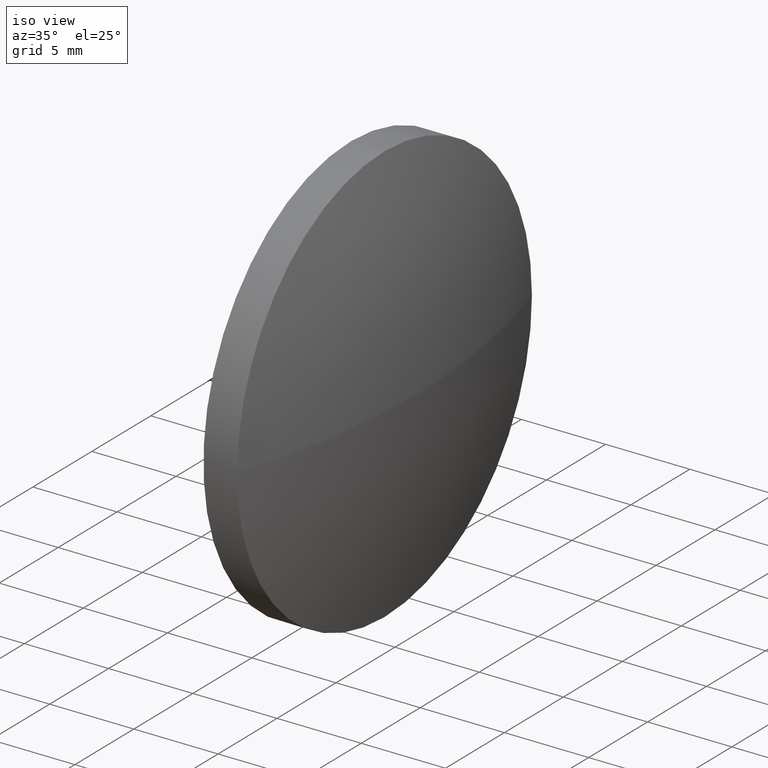
[diagram: clean part render]
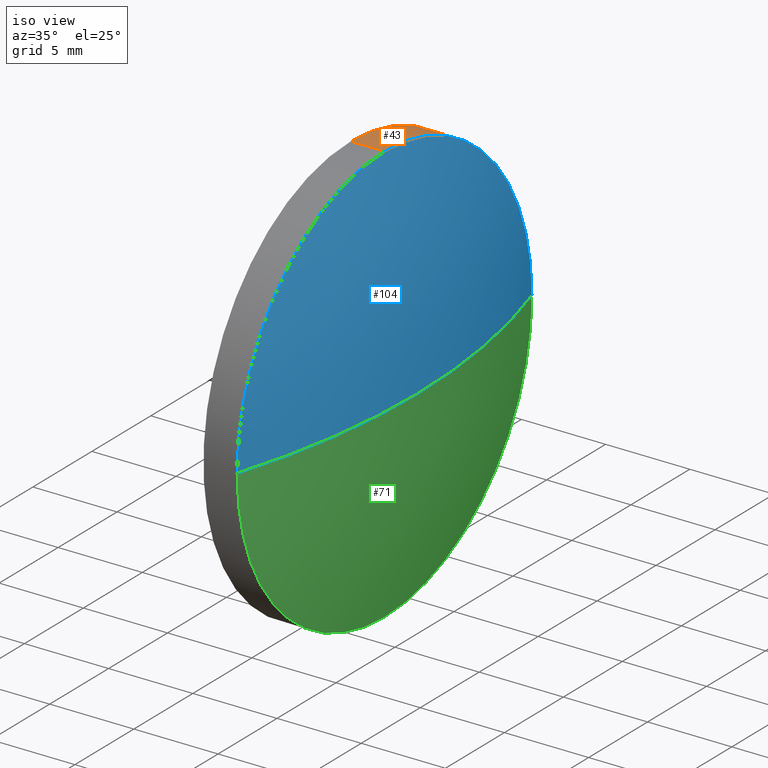
[diagram: same view with three faces highlighted in distinct colors, each labeled with its STEP entity id]
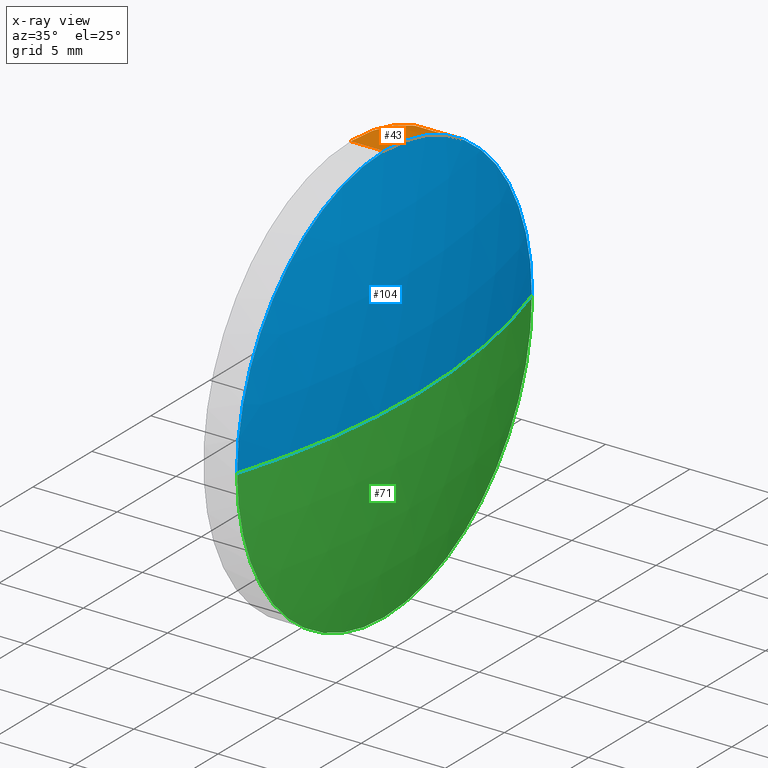
[diagram: x-ray of the same camera — body ghosted, the three highlighted faces saturated]
A machine part, iso view with three faces highlighted in distinct colors.
The next image is the same camera in x-ray (body ghosted, the three faces saturated) — at least one of them is partly hidden behind the body in this view.
Their STEP definitions:

[orange] entity #43 — the highlighted cylindrical surface (partial cylindrical patch) has radius 12.5 mm, axis along (-1, -0, -0).
#2 = LINE ( 'NONE', #151, #123 ) ;
#3 = ORIENTED_EDGE ( 'NONE', *, *, #97, .F. ) ;
#4 = LINE ( 'NONE', #117, #96 ) ;
#12 = VERTEX_POINT ( 'NONE', #49 ) ;
#18 = FACE_OUTER_BOUND ( 'NONE', #48, .T. ) ;
#20 = CARTESIAN_POINT ( 'NONE',  ( 846.2559013236141300, 251.6067305368113700, 12.50000000000001100 ) ) ;
#34 = CARTESIAN_POINT ( 'NONE',  ( 848.2559013236141300, 264.1067305368114300, 1.530808498934193100E-015 ) ) ;
#43 = ADVANCED_FACE ( 'NONE', ( #18 ), #140, .T. ) ;
#45 = EDGE_CURVE ( 'NONE', #12, #90, #87, .T. ) ;
#48 = EDGE_LOOP ( 'NONE', ( #109, #165, #134, #3, #91 ) ) ;
#49 = CARTESIAN_POINT ( 'NONE',  ( 848.2559013236141300, 251.6067305368113700, 12.50000000000001100 ) ) ;
#50 = AXIS2_PLACEMENT_3D ( 'NONE', #84, #65, #180 ) ;
#52 = VERTEX_POINT ( 'NONE', #132 ) ;
#64 = CARTESIAN_POINT ( 'NONE',  ( 848.2559013236141300, 251.6067305368113700, 0.0000000000000000000 ) ) ;
#65 = DIRECTION ( 'NONE',  ( -1.000000000000000000, -0.0000000000000000000, -0.0000000000000000000 ) ) ;
#67 = AXIS2_PLACEMENT_3D ( 'NONE', #98, #82, #154 ) ;
#77 = AXIS2_PLACEMENT_3D ( 'NONE', #64, #143, #166 ) ;
#79 = CIRCLE ( 'NONE', #101, 12.50000000000001100 ) ;
#82 = DIRECTION ( 'NONE',  ( -1.000000000000000000, -0.0000000000000000000, -0.0000000000000000000 ) ) ;
#84 = CARTESIAN_POINT ( 'NONE',  ( 848.2559013236141300, 251.6067305368113700, 0.0000000000000000000 ) ) ;
#87 = CIRCLE ( 'NONE', #50, 12.50000000000001100 ) ;
#88 = VERTEX_POINT ( 'NONE', #183 ) ;
#90 = VERTEX_POINT ( 'NONE', #34 ) ;
#91 = ORIENTED_EDGE ( 'NONE', *, *, #45, .T. ) ;
#92 = DIRECTION ( 'NONE',  ( -1.000000000000000000, -0.0000000000000000000, -0.0000000000000000000 ) ) ;
#96 = VECTOR ( 'NONE', #171, 1000.000000000000000 ) ;
#97 = EDGE_CURVE ( 'NONE', #12, #146, #2, .T. ) ;
#98 = CARTESIAN_POINT ( 'NONE',  ( 843.8902854208531600, 251.6067305368113700, 0.0000000000000000000 ) ) ;
#100 = EDGE_CURVE ( 'NONE', #90, #88, #156, .T. ) ;
#101 = AXIS2_PLACEMENT_3D ( 'NONE', #113, #152, #153 ) ;
#109 = ORIENTED_EDGE ( 'NONE', *, *, #100, .T. ) ;
#113 = CARTESIAN_POINT ( 'NONE',  ( 846.2559013236141300, 251.6067305368113700, 0.0000000000000000000 ) ) ;
#117 = CARTESIAN_POINT ( 'NONE',  ( 843.8902854208531600, 251.6067305368113700, -12.50000000000001100 ) ) ;
#121 = EDGE_CURVE ( 'NONE', #146, #52, #79, .T. ) ;
#123 = VECTOR ( 'NONE', #92, 1000.000000000000000 ) ;
#132 = CARTESIAN_POINT ( 'NONE',  ( 846.2559013236141300, 251.6067305368113700, -12.50000000000001100 ) ) ;
#134 = ORIENTED_EDGE ( 'NONE', *, *, #121, .F. ) ;
#140 = CYLINDRICAL_SURFACE ( 'NONE', #67, 12.50000000000001100 ) ;
#143 = DIRECTION ( 'NONE',  ( -1.000000000000000000, -0.0000000000000000000, -0.0000000000000000000 ) ) ;
#146 = VERTEX_POINT ( 'NONE', #20 ) ;
#151 = CARTESIAN_POINT ( 'NONE',  ( 843.8902854208531600, 251.6067305368113700, 12.50000000000001100 ) ) ;
#152 = DIRECTION ( 'NONE',  ( -1.000000000000000000, -0.0000000000000000000, -0.0000000000000000000 ) ) ;
#153 = DIRECTION ( 'NONE',  ( 0.0000000000000000000, 0.0000000000000000000, 1.000000000000000000 ) ) ;
#154 = DIRECTION ( 'NONE',  ( 0.0000000000000000000, 0.0000000000000000000, 1.000000000000000000 ) ) ;
#156 = CIRCLE ( 'NONE', #77, 12.50000000000001100 ) ;
#165 = ORIENTED_EDGE ( 'NONE', *, *, #182, .T. ) ;
#166 = DIRECTION ( 'NONE',  ( 0.0000000000000000000, 0.0000000000000000000, 1.000000000000000000 ) ) ;
#171 = DIRECTION ( 'NONE',  ( -1.000000000000000000, -0.0000000000000000000, -0.0000000000000000000 ) ) ;
#180 = DIRECTION ( 'NONE',  ( 0.0000000000000000000, 0.0000000000000000000, 1.000000000000000000 ) ) ;
#182 = EDGE_CURVE ( 'NONE', #88, #52, #4, .T. ) ;
#183 = CARTESIAN_POINT ( 'NONE',  ( 848.2559013236141300, 251.6067305368113700, -12.50000000000001100 ) ) ;

[blue] entity #104 — the highlighted spherical surface has radius 41.2406 mm.
#6 = ORIENTED_EDGE ( 'NONE', *, *, #22, .F. ) ;
#9 = DIRECTION ( 'NONE',  ( 0.0000000000000000000, -1.000000000000000000, -1.224646799147353000E-016 ) ) ;
#11 = FACE_OUTER_BOUND ( 'NONE', #16, .T. ) ;
#12 = VERTEX_POINT ( 'NONE', #49 ) ;
#15 = DIRECTION ( 'NONE',  ( 0.0000000000000000000, 0.0000000000000000000, -1.000000000000000000 ) ) ;
#16 = EDGE_LOOP ( 'NONE', ( #6, #70, #76, #54 ) ) ;
#22 = EDGE_CURVE ( 'NONE', #157, #30, #41, .T. ) ;
#30 = VERTEX_POINT ( 'NONE', #59 ) ;
#31 = CARTESIAN_POINT ( 'NONE',  ( 808.9552827669131100, 251.6067305368114300, 0.0000000000000000000 ) ) ;
#34 = CARTESIAN_POINT ( 'NONE',  ( 848.2559013236141300, 264.1067305368114300, 1.530808498934193100E-015 ) ) ;
#36 = CARTESIAN_POINT ( 'NONE',  ( 848.2559013236141300, 251.6067305368113700, 0.0000000000000000000 ) ) ;
#38 = EDGE_CURVE ( 'NONE', #30, #12, #51, .T. ) ;
#41 = CIRCLE ( 'NONE', #147, 41.24061855670113600 ) ;
#45 = EDGE_CURVE ( 'NONE', #12, #90, #87, .T. ) ;
#49 = CARTESIAN_POINT ( 'NONE',  ( 848.2559013236141300, 251.6067305368113700, 12.50000000000001100 ) ) ;
#50 = AXIS2_PLACEMENT_3D ( 'NONE', #84, #65, #180 ) ;
#51 = CIRCLE ( 'NONE', #133, 12.50000000000001100 ) ;
#54 = ORIENTED_EDGE ( 'NONE', *, *, #38, .F. ) ;
#59 = CARTESIAN_POINT ( 'NONE',  ( 848.2559013236141300, 239.1067305368113700, 0.0000000000000000000 ) ) ;
#62 = AXIS2_PLACEMENT_3D ( 'NONE', #141, #130, #142 ) ;
#65 = DIRECTION ( 'NONE',  ( -1.000000000000000000, -0.0000000000000000000, -0.0000000000000000000 ) ) ;
#69 = DIRECTION ( 'NONE',  ( 0.0000000000000000000, -1.224646799147353200E-016, 1.000000000000000000 ) ) ;
#70 = ORIENTED_EDGE ( 'NONE', *, *, #174, .T. ) ;
#75 = CARTESIAN_POINT ( 'NONE',  ( 808.9552827669131100, 251.6067305368114300, 0.0000000000000000000 ) ) ;
#76 = ORIENTED_EDGE ( 'NONE', *, *, #45, .F. ) ;
#84 = CARTESIAN_POINT ( 'NONE',  ( 848.2559013236141300, 251.6067305368113700, 0.0000000000000000000 ) ) ;
#87 = CIRCLE ( 'NONE', #50, 12.50000000000001100 ) ;
#90 = VERTEX_POINT ( 'NONE', #34 ) ;
#95 = DIRECTION ( 'NONE',  ( -1.000000000000000000, -0.0000000000000000000, -0.0000000000000000000 ) ) ;
#104 = ADVANCED_FACE ( 'NONE', ( #11 ), #144, .T. ) ;
#107 = DIRECTION ( 'NONE',  ( -1.000000000000000000, 0.0000000000000000000, 0.0000000000000000000 ) ) ;
#122 = AXIS2_PLACEMENT_3D ( 'NONE', #75, #69, #9 ) ;
#130 = DIRECTION ( 'NONE',  ( 0.0000000000000000000, 0.0000000000000000000, 1.000000000000000000 ) ) ;
#133 = AXIS2_PLACEMENT_3D ( 'NONE', #36, #95, #167 ) ;
#141 = CARTESIAN_POINT ( 'NONE',  ( 808.9552827669131100, 251.6067305368114300, 0.0000000000000000000 ) ) ;
#142 = DIRECTION ( 'NONE',  ( 0.0000000000000000000, -1.000000000000000000, 0.0000000000000000000 ) ) ;
#144 = SPHERICAL_SURFACE ( 'NONE', #62, 41.24061855670110100 ) ;
#147 = AXIS2_PLACEMENT_3D ( 'NONE', #31, #15, #107 ) ;
#150 = CIRCLE ( 'NONE', #122, 41.24061855670110800 ) ;
#157 = VERTEX_POINT ( 'NONE', #181 ) ;
#167 = DIRECTION ( 'NONE',  ( 0.0000000000000000000, 0.0000000000000000000, 1.000000000000000000 ) ) ;
#174 = EDGE_CURVE ( 'NONE', #157, #90, #150, .T. ) ;
#180 = DIRECTION ( 'NONE',  ( 0.0000000000000000000, 0.0000000000000000000, 1.000000000000000000 ) ) ;
#181 = CARTESIAN_POINT ( 'NONE',  ( 850.1959013236141800, 251.6067305368114300, 0.0000000000000000000 ) ) ;

[green] entity #71 — the highlighted spherical surface has radius 41.2406 mm.
#5 = EDGE_LOOP ( 'NONE', ( #61, #19, #116, #17 ) ) ;
#9 = DIRECTION ( 'NONE',  ( 0.0000000000000000000, -1.000000000000000000, -1.224646799147353000E-016 ) ) ;
#10 = CARTESIAN_POINT ( 'NONE',  ( 848.2559013236141300, 251.6067305368113700, 0.0000000000000000000 ) ) ;
#15 = DIRECTION ( 'NONE',  ( 0.0000000000000000000, 0.0000000000000000000, -1.000000000000000000 ) ) ;
#17 = ORIENTED_EDGE ( 'NONE', *, *, #100, .F. ) ;
#19 = ORIENTED_EDGE ( 'NONE', *, *, #22, .T. ) ;
#22 = EDGE_CURVE ( 'NONE', #157, #30, #41, .T. ) ;
#23 = DIRECTION ( 'NONE',  ( -1.000000000000000000, -0.0000000000000000000, -0.0000000000000000000 ) ) ;
#30 = VERTEX_POINT ( 'NONE', #59 ) ;
#31 = CARTESIAN_POINT ( 'NONE',  ( 808.9552827669131100, 251.6067305368114300, 0.0000000000000000000 ) ) ;
#34 = CARTESIAN_POINT ( 'NONE',  ( 848.2559013236141300, 264.1067305368114300, 1.530808498934193100E-015 ) ) ;
#40 = CARTESIAN_POINT ( 'NONE',  ( 808.9552827669131100, 251.6067305368114300, 0.0000000000000000000 ) ) ;
#41 = CIRCLE ( 'NONE', #147, 41.24061855670113600 ) ;
#59 = CARTESIAN_POINT ( 'NONE',  ( 848.2559013236141300, 239.1067305368113700, 0.0000000000000000000 ) ) ;
#61 = ORIENTED_EDGE ( 'NONE', *, *, #174, .F. ) ;
#64 = CARTESIAN_POINT ( 'NONE',  ( 848.2559013236141300, 251.6067305368113700, 0.0000000000000000000 ) ) ;
#68 = AXIS2_PLACEMENT_3D ( 'NONE', #10, #23, #131 ) ;
#69 = DIRECTION ( 'NONE',  ( 0.0000000000000000000, -1.224646799147353200E-016, 1.000000000000000000 ) ) ;
#71 = ADVANCED_FACE ( 'NONE', ( #175 ), #169, .T. ) ;
#75 = CARTESIAN_POINT ( 'NONE',  ( 808.9552827669131100, 251.6067305368114300, 0.0000000000000000000 ) ) ;
#77 = AXIS2_PLACEMENT_3D ( 'NONE', #64, #143, #166 ) ;
#88 = VERTEX_POINT ( 'NONE', #183 ) ;
#90 = VERTEX_POINT ( 'NONE', #34 ) ;
#100 = EDGE_CURVE ( 'NONE', #90, #88, #156, .T. ) ;
#107 = DIRECTION ( 'NONE',  ( -1.000000000000000000, 0.0000000000000000000, 0.0000000000000000000 ) ) ;
#116 = ORIENTED_EDGE ( 'NONE', *, *, #129, .F. ) ;
#122 = AXIS2_PLACEMENT_3D ( 'NONE', #75, #69, #9 ) ;
#125 = DIRECTION ( 'NONE',  ( 0.0000000000000000000, -1.000000000000000000, 0.0000000000000000000 ) ) ;
#128 = DIRECTION ( 'NONE',  ( 0.0000000000000000000, 0.0000000000000000000, 1.000000000000000000 ) ) ;
#129 = EDGE_CURVE ( 'NONE', #88, #30, #170, .T. ) ;
#131 = DIRECTION ( 'NONE',  ( 0.0000000000000000000, 0.0000000000000000000, 1.000000000000000000 ) ) ;
#138 = AXIS2_PLACEMENT_3D ( 'NONE', #40, #128, #125 ) ;
#143 = DIRECTION ( 'NONE',  ( -1.000000000000000000, -0.0000000000000000000, -0.0000000000000000000 ) ) ;
#147 = AXIS2_PLACEMENT_3D ( 'NONE', #31, #15, #107 ) ;
#150 = CIRCLE ( 'NONE', #122, 41.24061855670110800 ) ;
#156 = CIRCLE ( 'NONE', #77, 12.50000000000001100 ) ;
#157 = VERTEX_POINT ( 'NONE', #181 ) ;
#166 = DIRECTION ( 'NONE',  ( 0.0000000000000000000, 0.0000000000000000000, 1.000000000000000000 ) ) ;
#169 = SPHERICAL_SURFACE ( 'NONE', #138, 41.24061855670110100 ) ;
#170 = CIRCLE ( 'NONE', #68, 12.50000000000001100 ) ;
#174 = EDGE_CURVE ( 'NONE', #157, #90, #150, .T. ) ;
#175 = FACE_OUTER_BOUND ( 'NONE', #5, .T. ) ;
#181 = CARTESIAN_POINT ( 'NONE',  ( 850.1959013236141800, 251.6067305368114300, 0.0000000000000000000 ) ) ;
#183 = CARTESIAN_POINT ( 'NONE',  ( 848.2559013236141300, 251.6067305368113700, -12.50000000000001100 ) ) ;